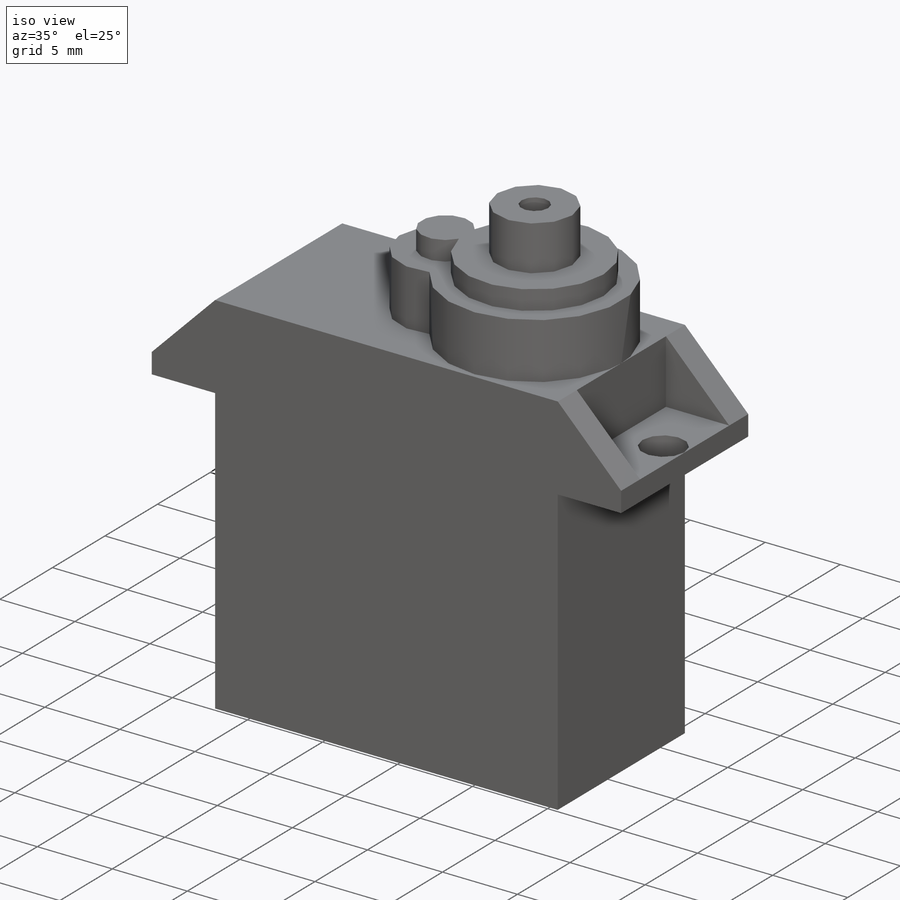
[diagram: iso view]
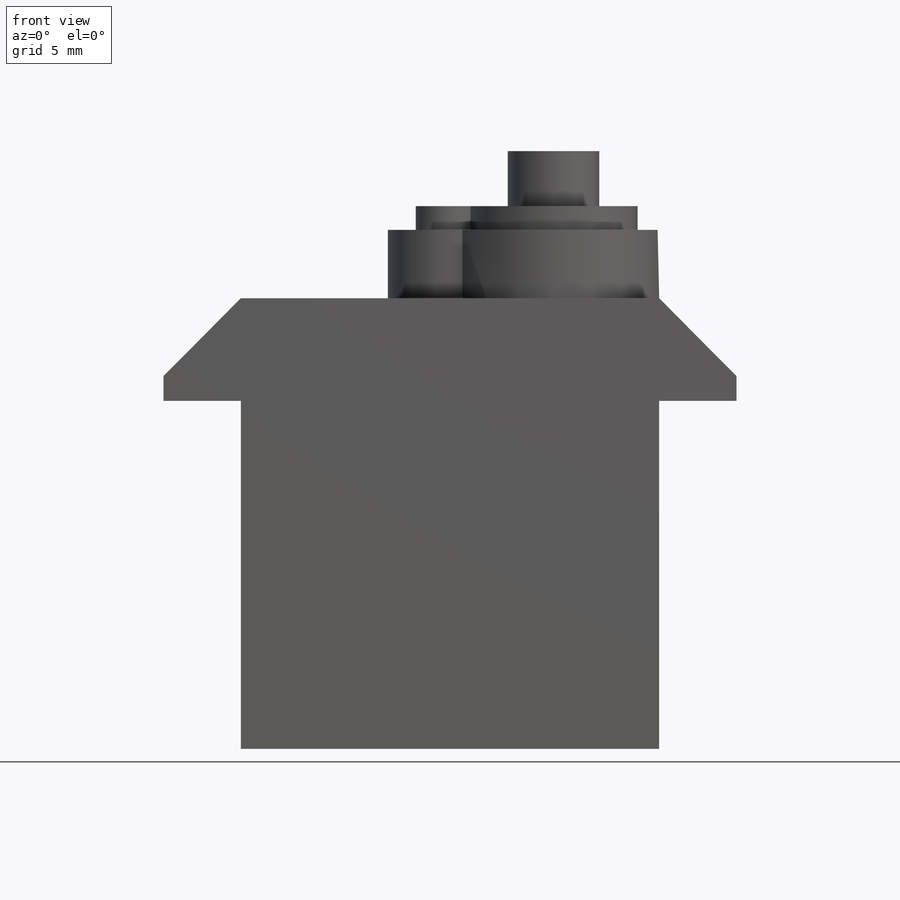
[diagram: front view]
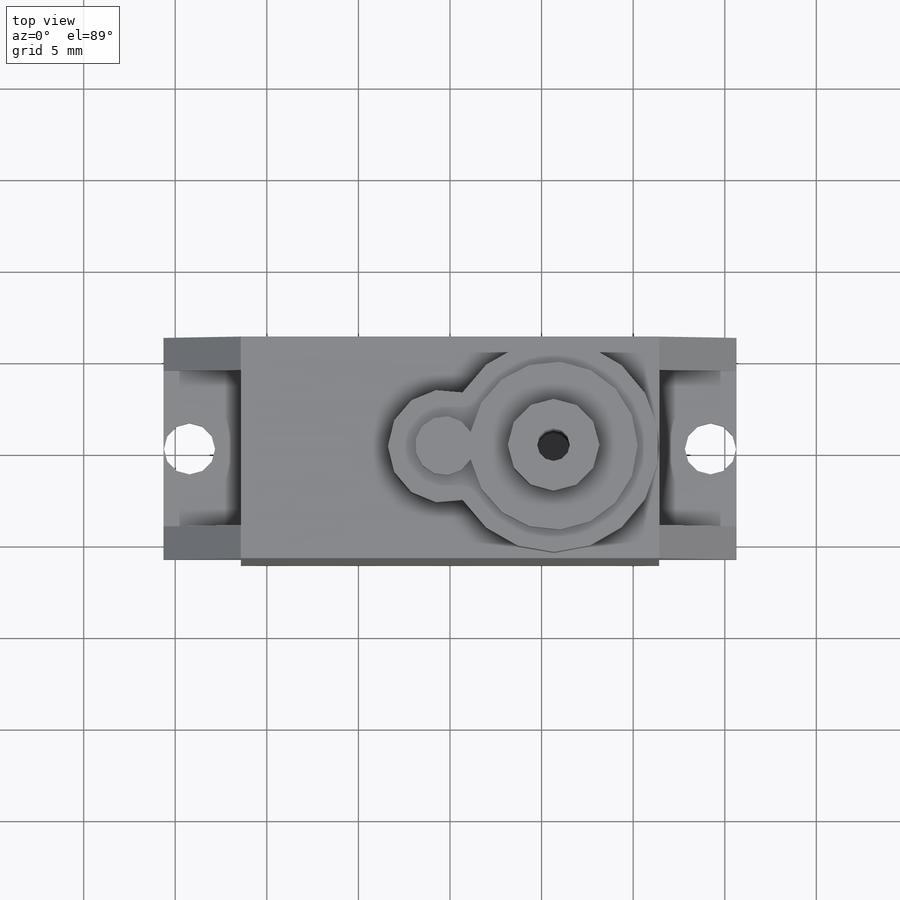
[diagram: top view]
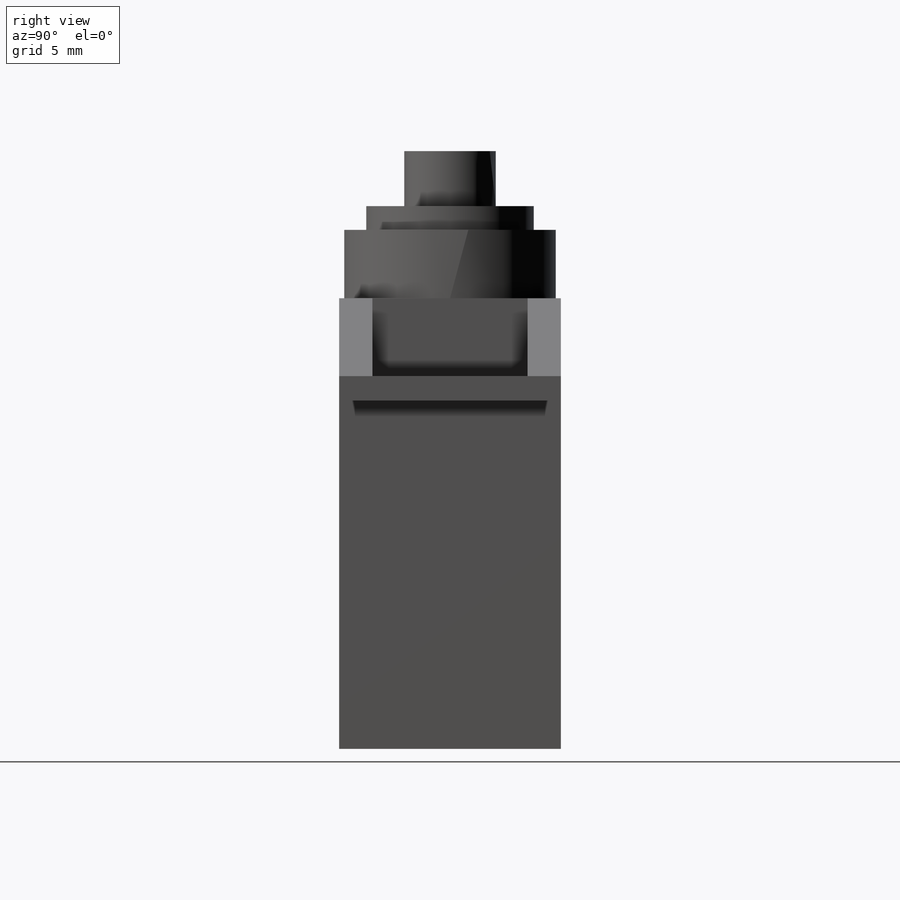
[diagram: right view]
SOLIDWORKS PART (.sldprt)
format: sldprt  version: not decoded by parser v0  size: 561,664 bytes
history: native  units: mm
features: sketch x10, extrude x5, cut_extrude x4, material x1 (+13 scaffold rows collapsed)
feature tree (33):
  scaffold x13  (default folders/planes/origin — collapsed)
  material  "Material <not specified>"
  sketch  "Sketch2"  dims[D1=22.83mm D2=12.1mm]
  extrude  "Boss-Extrude1"  Depth=19mm
  sketch  "Sketch3"  dims[D1=31.28mm]
  extrude  "Boss-Extrude2"  Depth=5.6mm
  sketch  "Sketch4"  dims[D1=22.84mm]
  sketch  "Sketch5"  dims[D1=1.35mm]
  cut_extrude  "Cut-Extrude1"  [1 undecoded]
  sketch  "Sketch6"  dims[D1=8.48mm]
  cut_extrude  "Cut-Extrude2"  Depth=1.35mm
  sketch  "Sketch7"  dims[D1=2.8mm D2=25.64mm]
  cut_extrude  "Cut-Extrude3"  [1 undecoded]
  sketch  "Sketch8"  dims[D1=11.54mm D2=6.17mm D3=14.81mm]
  extrude  "Boss-Extrude3"  Depth=3.73mm
  sketch  "Sketch9"  dims[D1=9.18mm D2=3.22mm]
  extrude  "Boss-Extrude4"  Depth=1.3mm
  sketch  "Sketch10"  dims[D1=5.0mm]
  extrude  "Boss-Extrude5"  Depth=3mm
  sketch  "Sketch12"  dims[D1=1.78mm]
  cut_extrude  "Cut-Extrude4"  Depth=14mm
decode coverage: 17 of 19 modeling features carry decoded parameters
note: 2 parameter values undecoded
note: suppression state not decoded; provenance and decode notes live in map.json
